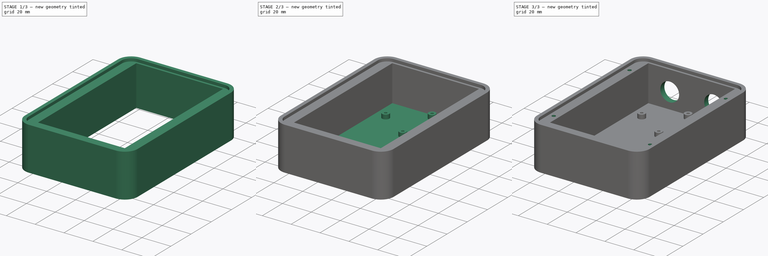
[diagram: build sequence overview — one tinted view per stage of 3, left to right]
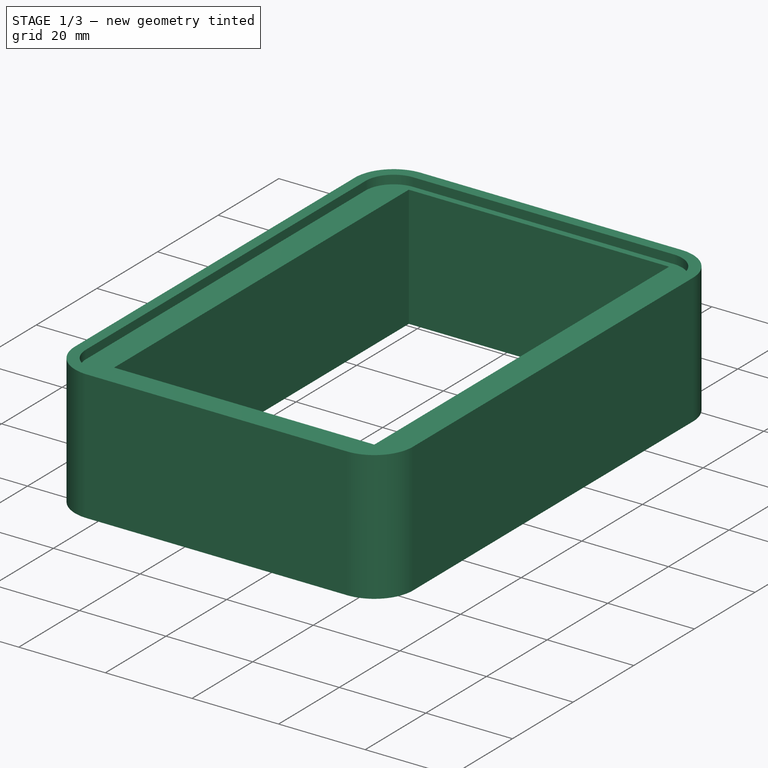
[diagram: stage 1 of 3 — iso view after this stage's code; geometry added in this stage tinted green]
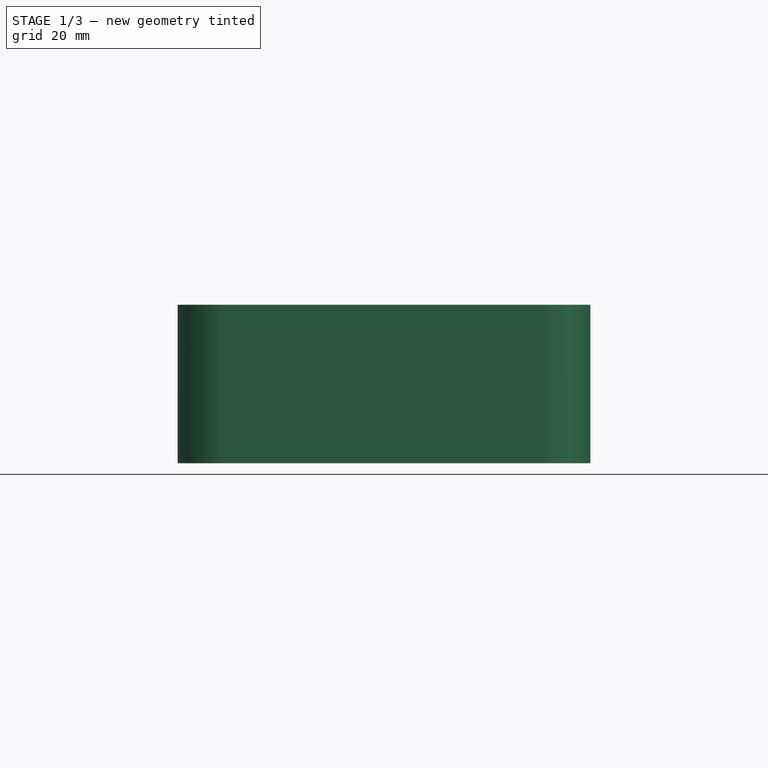
[diagram: stage 1 of 3 — front view after this stage's code; geometry added in this stage tinted green]
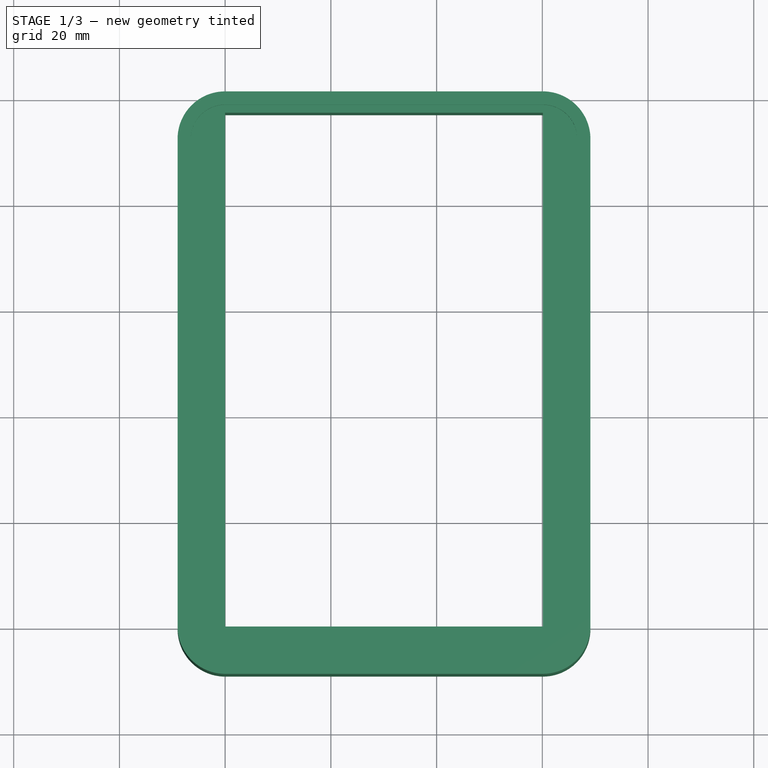
[diagram: stage 1 of 3 — top view after this stage's code; geometry added in this stage tinted green]
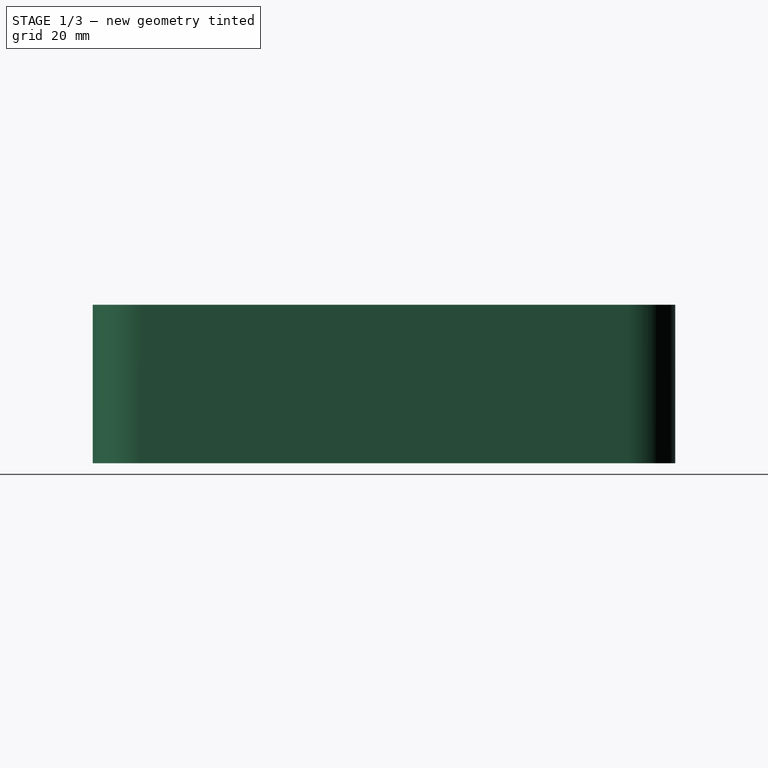
[diagram: stage 1 of 3 — right view after this stage's code; geometry added in this stage tinted green]
FCSTD DOCUMENT  (FreeCAD 0.18R4 (GitTag))
Label: uBike
License: All rights reserved
LicenseURL: http://en.wikipedia.org/wiki/All_rights_reserved
objects: Sketcher::SketchObject×6, PartDesign::Pad×3, PartDesign::Pocket×3, PartDesign::Body×1
note: 19 computed .brp shape members not serialized (recipe doc carries the construction recipe); baked Part::Feature solids carry a one-line shape summary decoded from their .brp

FEATURE [Sketcher::SketchObject] Sketch
  MapMode = 5
  Support = -> [XY_Plane]
  sketch-geometry (12):
    g0: LineSegment StartX=-1.7e-15 StartY=-9 StartZ=0 EndX=60.1 EndY=-9 EndZ=0
    g1: LineSegment StartX=69.1 StartY=3e-16 StartZ=0 EndX=69.1 EndY=92.2 EndZ=0
    g2: LineSegment StartX=60.1 StartY=101.2 StartZ=0 EndX=0 EndY=101.2 EndZ=0
    g3: LineSegment StartX=-9 StartY=92.2 StartZ=0 EndX=-9 EndY=0 EndZ=0
    g4: ArcOfCircle CenterX=6e-16 CenterY=92.2 CenterZ=0 NormalX=0 NormalY=0 NormalZ=1 AngleXU=0 Radius=9 StartAngle=1.5708 EndAngle=3.14159
    g5: ArcOfCircle CenterX=60.1 CenterY=92.2 CenterZ=0 NormalX=0 NormalY=0 NormalZ=1 AngleXU=0 Radius=9 StartAngle=7e-16 EndAngle=1.5708
    g6: ArcOfCircle CenterX=60.1 CenterY=3e-16 CenterZ=0 NormalX=0 NormalY=0 NormalZ=1 AngleXU=0 Radius=9 StartAngle=4.71239 EndAngle=6.28319
    g7: ArcOfCircle CenterX=0 CenterY=0 CenterZ=0 NormalX=0 NormalY=0 NormalZ=1 AngleXU=0 Radius=9 StartAngle=3.14159 EndAngle=4.71239
    g8: LineSegment StartX=0 StartY=0 StartZ=0 EndX=60.1 EndY=0 EndZ=0
    g9: LineSegment StartX=60.1 StartY=0 StartZ=0 EndX=60.1 EndY=97.2 EndZ=0
    g10: LineSegment StartX=60.1 StartY=97.2 StartZ=0 EndX=0 EndY=97.2 EndZ=0
    g11: LineSegment StartX=0 StartY=97.2 StartZ=0 EndX=0 EndY=0 EndZ=0
  constraints (30):
    c: Horizontal(g0)
    c: Horizontal(g2)
    c: Vertical(g1)
    c: Vertical(g3)
    c: Tangent(g3,g4) = -1.5708
    c: Tangent(g2,g4) = -1.5708
    c: Tangent(g2,g5) = -1.5708
    c: Tangent(g1,g5) = -1.5708
    c: Tangent(g1,g6) = -1.5708
    c: Tangent(g0,g6) = -1.5708
    c: Tangent(g0,g7) = -1.5708
    c: Tangent(g3,g7) = -1.5708
    c: DistanceX(g3,g1) = 78.1
    c: DistanceY(g0,g2) = 110.2
    c: Radius(g7) = 9
    c: Equal(g7,g6)
    c: Equal(g7,g4)
    c: Equal(g7,g5)
    c: Coincident(g7,g-1)
    c: Coincident(g8,g9)
    c: Coincident(g9,g10)
    c: Coincident(g10,g11)
    c: Coincident(g11,g8)
    c: Horizontal(g8)
    c: Horizontal(g10)
    c: Vertical(g9)
    c: Vertical(g11)
    c: Coincident(g7,g8)
    c: PointOnObject(g5,g9)
    c: DistanceY(g10,g2) = 4
FEATURE [PartDesign::Pad] Pad
  Length = 30
  Length2 = 100
  Profile = -> Sketch
  Type = 0
FEATURE [Sketcher::SketchObject] Sketch001
  ExternalGeometry = -> [Pad]
  MapMode = 5
  Placement = pos=(0,0,30) rot=(0,0,1;0rad)
  Support = -> [Pad]
  sketch-geometry (8):
    g0: LineSegment StartX=1e-16 StartY=98.7 StartZ=0 EndX=60.1 EndY=98.7 EndZ=0
    g1: LineSegment StartX=66.6 StartY=92.2 StartZ=0 EndX=66.6 EndY=0 EndZ=0
    g2: LineSegment StartX=60.1 StartY=-6.5 StartZ=0 EndX=0 EndY=-6.5 EndZ=0
    g3: LineSegment StartX=-6.5 StartY=8e-16 StartZ=0 EndX=-6.5 EndY=92.2 EndZ=0
    g4: ArcOfCircle CenterX=-3e-16 CenterY=92.2 CenterZ=0 NormalX=0 NormalY=0 NormalZ=1 AngleXU=0 Radius=6.5 StartAngle=1.5708 EndAngle=3.14159
    g5: ArcOfCircle CenterX=60.1 CenterY=92.2 CenterZ=0 NormalX=0 NormalY=0 NormalZ=1 AngleXU=0 Radius=6.5 StartAngle=0 EndAngle=1.5708
    g6: ArcOfCircle CenterX=60.1 CenterY=-3e-16 CenterZ=0 NormalX=0 NormalY=0 NormalZ=1 AngleXU=0 Radius=6.5 StartAngle=4.71239 EndAngle=6.28319
    g7: ArcOfCircle CenterX=0 CenterY=0 CenterZ=0 NormalX=0 NormalY=0 NormalZ=1 AngleXU=0 Radius=6.5 StartAngle=3.14159 EndAngle=4.71239
  constraints (19):
    c: Horizontal(g0)
    c: Horizontal(g2)
    c: Vertical(g1)
    c: Vertical(g3)
    c: Tangent(g3,g4) = 1.5708
    c: Tangent(g0,g4) = 1.5708
    c: Tangent(g0,g5) = 1.5708
    c: Tangent(g1,g5) = 1.5708
    c: Tangent(g1,g6) = 1.5708
    c: Tangent(g2,g6) = 1.5708
    c: Tangent(g2,g7) = 1.5708
    c: Tangent(g3,g7) = 1.5708
    c: Radius(g4) = 6.5
    c: Equal(g4,g5)
    c: Equal(g4,g7)
    c: Equal(g4,g6)
    c: Coincident(g7,g-1)
    c: DistanceY(g0,g-4) = 2.5
    c: Vertical(g-3,g0)
FEATURE [PartDesign::Pocket] Pocket
  BaseFeature = -> Pad
  Length = 2
  Length2 = 100
  Profile = -> Sketch001
  Type = 0
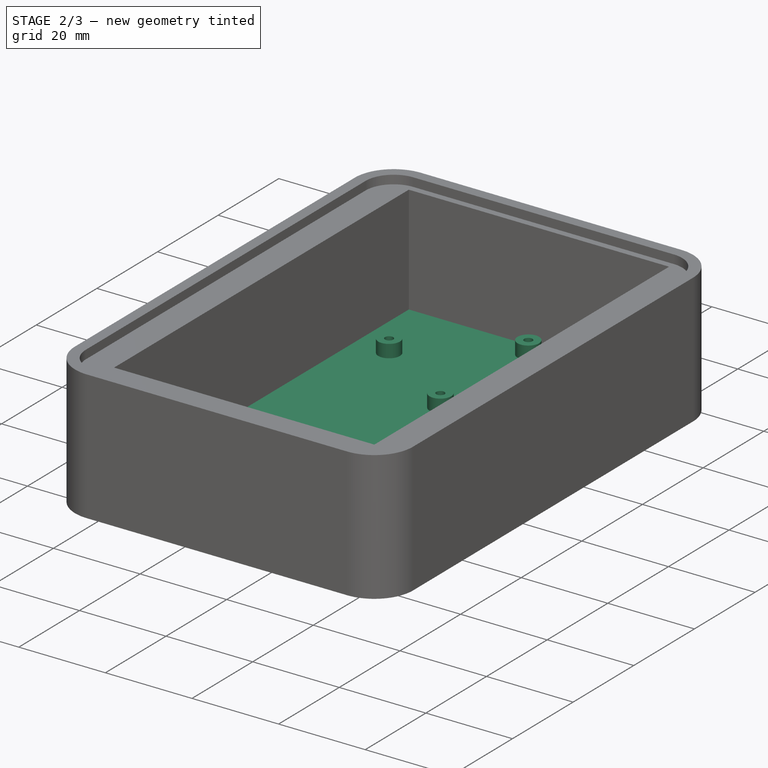
[diagram: stage 2 of 3 — iso view after this stage's code; geometry added in this stage tinted green]
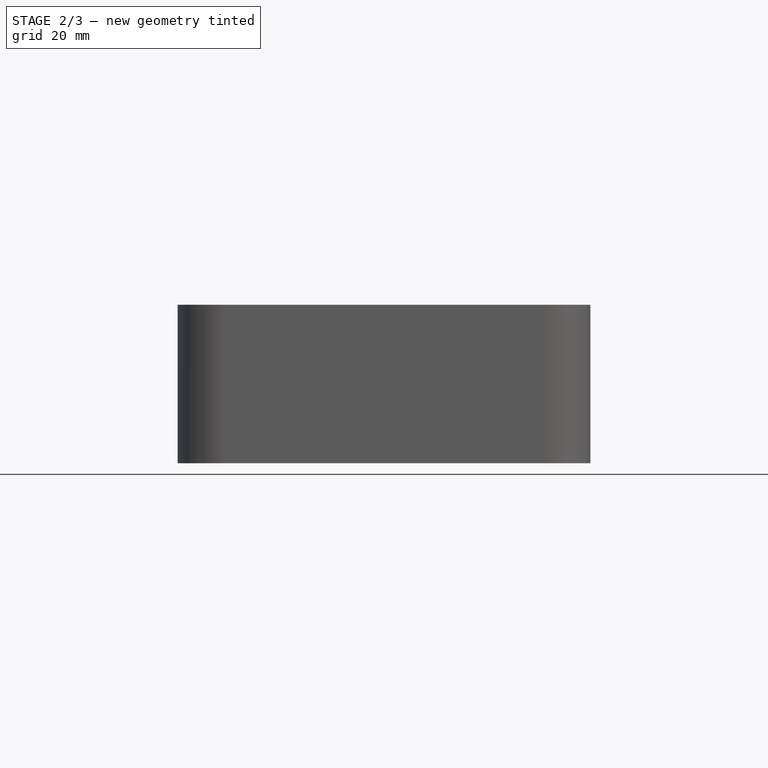
[diagram: stage 2 of 3 — front view after this stage's code; geometry added in this stage tinted green]
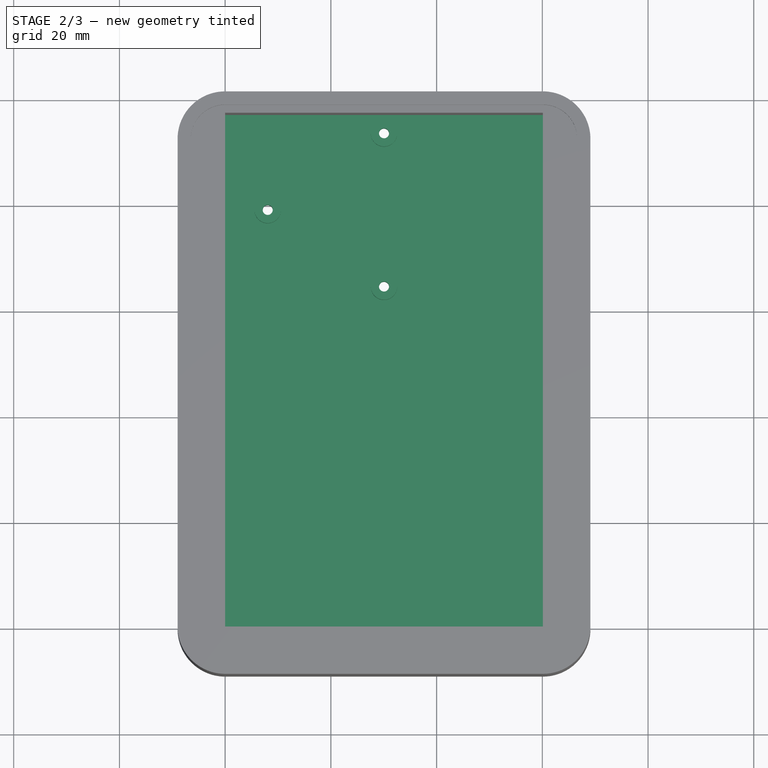
[diagram: stage 2 of 3 — top view after this stage's code; geometry added in this stage tinted green]
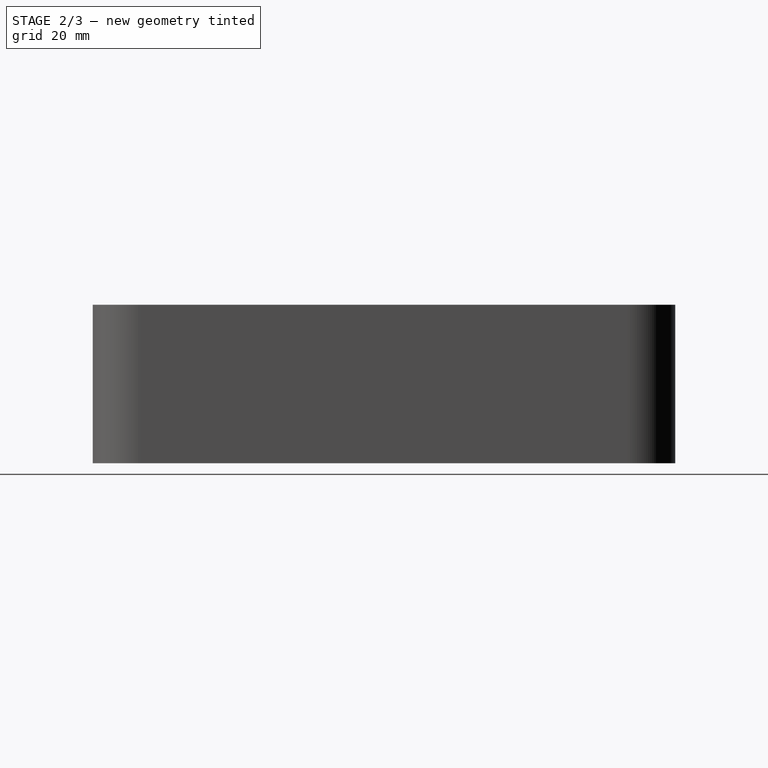
[diagram: stage 2 of 3 — right view after this stage's code; geometry added in this stage tinted green]
FEATURE [Sketcher::SketchObject] Sketch002
  ExternalGeometry = -> [Pocket]
  MapMode = 5
  Placement = pos=(0,0,0) rot=(1,0,0;3.14159rad)
  Support = -> [Pocket]
  sketch-geometry (7):
    g0: LineSegment StartX=0 StartY=0 StartZ=0 EndX=60.1 EndY=0 EndZ=0
    g1: LineSegment StartX=60.1 StartY=0 StartZ=0 EndX=60.1 EndY=-97.2 EndZ=0
    g2: LineSegment StartX=60.1 StartY=-97.2 StartZ=0 EndX=0 EndY=-97.2 EndZ=0
    g3: LineSegment StartX=0 StartY=-97.2 StartZ=0 EndX=0 EndY=0 EndZ=0
    g4: Circle CenterX=8.05 CenterY=-79.2 CenterZ=0 NormalX=0 NormalY=0 NormalZ=1 AngleXU=0 Radius=0.95
    g5: Circle CenterX=30.05 CenterY=-64.7 CenterZ=0 NormalX=0 NormalY=0 NormalZ=1 AngleXU=0 Radius=0.95
    g6: Circle CenterX=30.05 CenterY=-93.7 CenterZ=0 NormalX=0 NormalY=0 NormalZ=1 AngleXU=0 Radius=0.95
  constraints (19):
    c: Coincident(g0,g1)
    c: Coincident(g1,g2)
    c: Coincident(g2,g3)
    c: Coincident(g3,g0)
    c: Horizontal(g0)
    c: Horizontal(g2)
    c: Vertical(g1)
    c: Vertical(g3)
    c: Coincident(g0,g-1)
    c: Coincident(g1,g-3)
    c: Radius(g4) = 0.95
    c: Equal(g4,g5)
    c: Equal(g4,g6)
    c: Vertical(g5,g6)
    c: DistanceY(g6,g5) = 29
    c: DistanceX(g4,g5) = 22
    c: DistanceY(g4,g5) = 14.5
    c: DistanceX(g0,g5) = 30.05
    c: DistanceY(g2,g6) = 3.5
FEATURE [PartDesign::Pad] Pad001
  BaseFeature = -> Pocket
  Length = 3
  Length2 = 100
  Profile = -> Sketch002
  Reversed = true
  Type = 0
FEATURE [Sketcher::SketchObject] Sketch003
  ExternalGeometry = -> [Pad001]
  MapMode = 5
  Placement = pos=(0,0,3) rot=(0,0,1;0rad)
  Support = -> [Pad001]
  sketch-geometry (6):
    g0: Circle CenterX=8.05 CenterY=79.2 CenterZ=0 NormalX=0 NormalY=0 NormalZ=1 AngleXU=0 Radius=2.5
    g1: Circle CenterX=30.05 CenterY=93.7 CenterZ=0 NormalX=0 NormalY=0 NormalZ=1 AngleXU=0 Radius=2.5
    g2: Circle CenterX=30.05 CenterY=64.7 CenterZ=0 NormalX=0 NormalY=0 NormalZ=1 AngleXU=0 Radius=2.5
    g3: Circle CenterX=30.05 CenterY=64.7 CenterZ=0 NormalX=0 NormalY=0 NormalZ=1 AngleXU=0 Radius=0.95
    g4: Circle CenterX=8.05 CenterY=79.2 CenterZ=0 NormalX=0 NormalY=0 NormalZ=1 AngleXU=0 Radius=0.95
    g5: Circle CenterX=30.05 CenterY=93.7 CenterZ=0 NormalX=0 NormalY=0 NormalZ=1 AngleXU=0 Radius=0.95
  constraints (12):
    c: Radius(g1) = 2.5
    c: Equal(g1,g2)
    c: Equal(g1,g0)
    c: Coincident(g5,g-5)
    c: Coincident(g2,g-4)
    c: Coincident(g4,g-3)
    c: Coincident(g0,g4)
    c: Coincident(g1,g5)
    c: Equal(g4,g-3)
    c: Equal(g-5,g5)
    c: Equal(g3,g-4)
    c: Coincident(g3,g2)
FEATURE [PartDesign::Pad] Pad002
  BaseFeature = -> Pad001
  Length = 3
  Length2 = 100
  Profile = -> Sketch003
  Type = 0
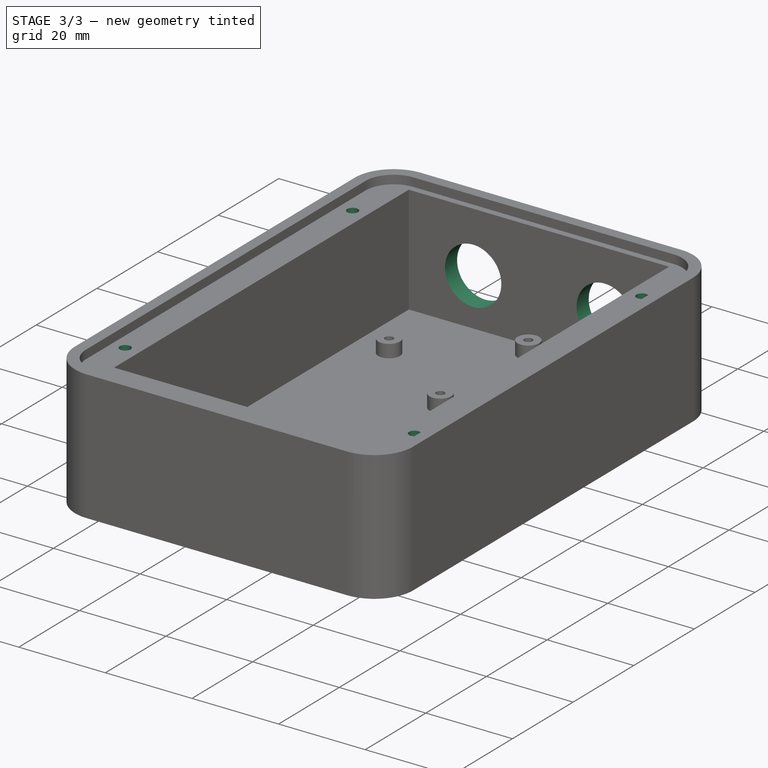
[diagram: stage 3 of 3 — iso view after this stage's code; geometry added in this stage tinted green]
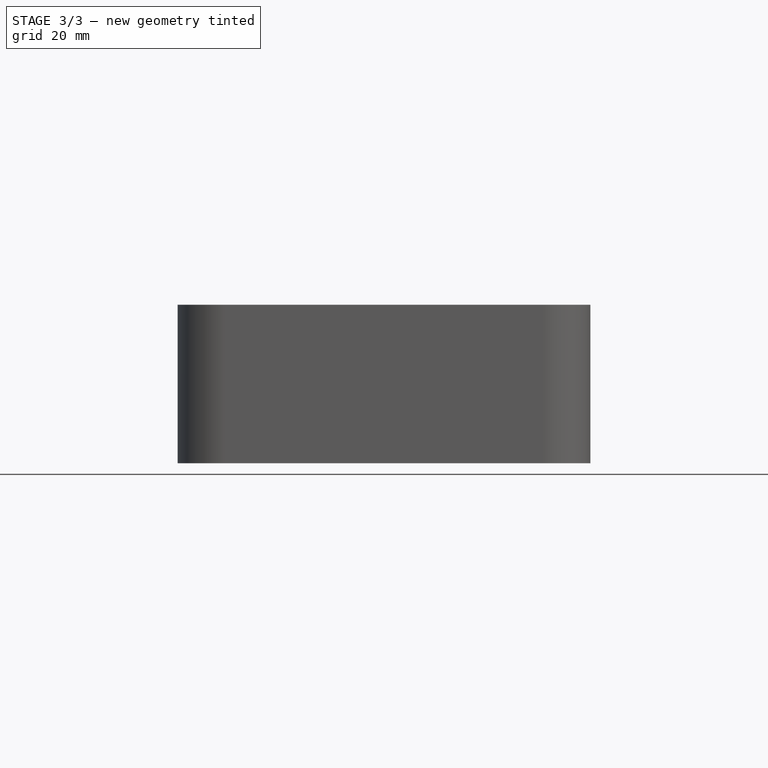
[diagram: stage 3 of 3 — front view after this stage's code; geometry added in this stage tinted green]
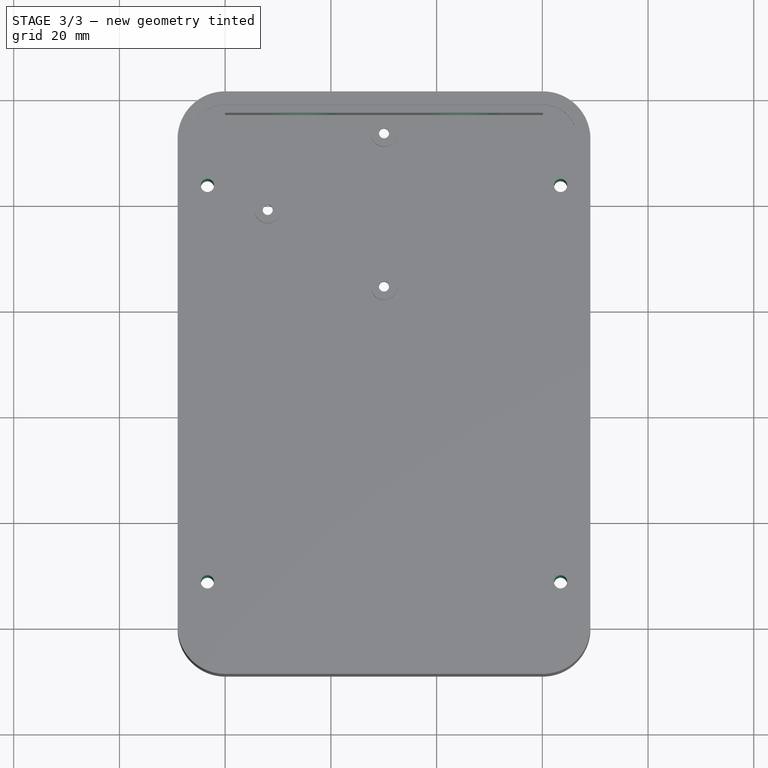
[diagram: stage 3 of 3 — top view after this stage's code; geometry added in this stage tinted green]
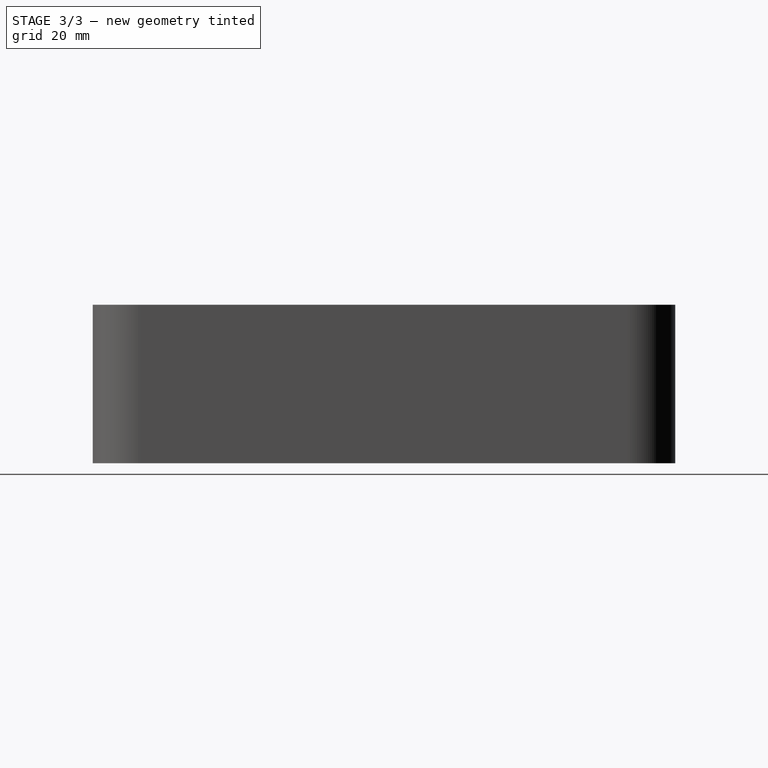
[diagram: stage 3 of 3 — right view after this stage's code; geometry added in this stage tinted green]
FEATURE [Sketcher::SketchObject] Sketch004
  ExternalGeometry = -> [Pad002]
  MapMode = 5
  Placement = pos=(0,97.2,0) rot=(1,0,0;1.5708rad)
  Support = -> [Pad002]
  sketch-geometry (2):
    g0: Circle CenterX=14.85 CenterY=14 CenterZ=0 NormalX=0 NormalY=0 NormalZ=1 AngleXU=0 Radius=6.5
    g1: Circle CenterX=45.25 CenterY=14 CenterZ=0 NormalX=0 NormalY=0 NormalZ=1 AngleXU=0 Radius=6.5
  constraints (6):
    c: DistanceY(g-3,g1) = 11
    c: DistanceY(g-3,g0) = 11
    c: DistanceX(g0,g1) = 30.4
    c: Radius(g0) = 6.5
    c: Equal(g0,g1)
    c: DistanceX(g1,g-3) = 14.85
FEATURE [PartDesign::Pocket] Pocket001
  BaseFeature = -> Pad002
  Length = 5
  Length2 = 100
  Profile = -> Sketch004
  Type = 1
FEATURE [Sketcher::SketchObject] Sketch005
  ExternalGeometry = -> [Pocket001]
  MapMode = 5
  Placement = pos=(0,0,28) rot=(0,0,1;0rad)
  Support = -> [Pocket001]
  sketch-geometry (8):
    g0: Circle CenterX=-3.35 CenterY=83.45 CenterZ=0 NormalX=0 NormalY=0 NormalZ=1 AngleXU=0 Radius=1.25
    g1: Circle CenterX=-3.35 CenterY=8.45 CenterZ=0 NormalX=0 NormalY=0 NormalZ=1 AngleXU=0 Radius=1.25
    g2: Circle CenterX=63.45 CenterY=83.45 CenterZ=0 NormalX=0 NormalY=0 NormalZ=1 AngleXU=0 Radius=1.25
    g3: Circle CenterX=63.45 CenterY=8.45 CenterZ=0 NormalX=0 NormalY=0 NormalZ=1 AngleXU=0 Radius=1.25
    g4: LineSegment [constr] StartX=-3.35 StartY=83.45 StartZ=0 EndX=63.45 EndY=83.45 EndZ=0
    g5: LineSegment [constr] StartX=63.45 StartY=83.45 StartZ=0 EndX=63.45 EndY=8.45 EndZ=0
    g6: LineSegment [constr] StartX=63.45 StartY=8.45 StartZ=0 EndX=-3.35 EndY=8.45 EndZ=0
    g7: LineSegment [constr] StartX=-3.35 StartY=8.45 StartZ=0 EndX=-3.35 EndY=83.45 EndZ=0
  constraints (21):
    c: Coincident(g4,g5)
    c: Coincident(g5,g6)
    c: Coincident(g6,g7)
    c: Coincident(g7,g4)
    c: Horizontal(g4)
    c: Horizontal(g6)
    c: Vertical(g5)
    c: Vertical(g7)
    c: Coincident(g0,g4)
    c: Coincident(g1,g6)
    c: Coincident(g2,g4)
    c: Coincident(g3,g5)
    c: Radius(g1) = 1.25
    c: Equal(g1,g0)
    c: Equal(g1,g2)
    c: Equal(g1,g3)
    c: DistanceX(g-3,g0) = 3.15
    c: DistanceX(g2,g-4) = 3.15
    c: DistanceY(g5,g5) = 75
    c: DistanceY(g-4,g-4) = 92.2
    c: DistanceY(g-4,g3) = 8.45
FEATURE [PartDesign::Pocket] Pocket002
  BaseFeature = -> Pocket001
  Length = 5
  Length2 = 100
  Profile = -> Sketch005
  Type = 1
FEATURE [PartDesign::Body] Body
  Group = -> [Sketch,Pad,Sketch001,Pocket,Sketch002,Pad001,Sketch003,Pad002,Sketch004,Pocket001,Sketch005,Pocket002]
  Origin = -> Origin
  Tip = -> Pocket002
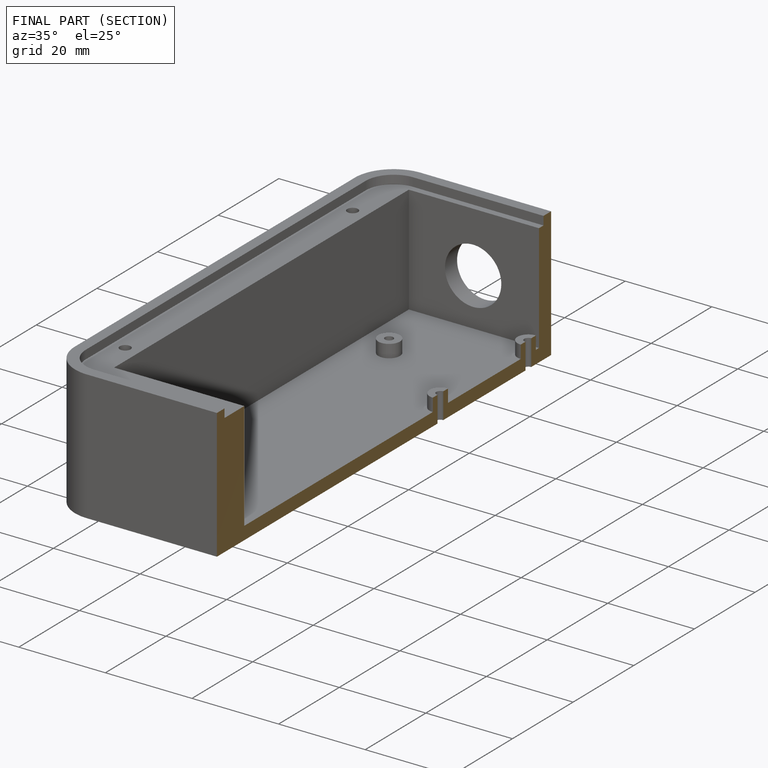
[diagram: finished part — half-section view (interior)]
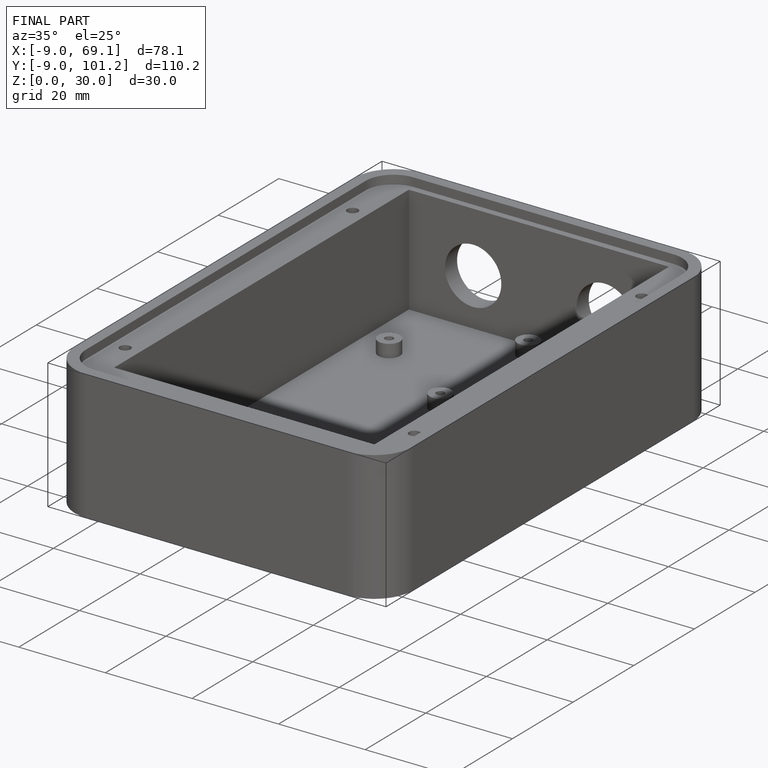
[diagram: finished part — iso view with bounding-box wireframe]
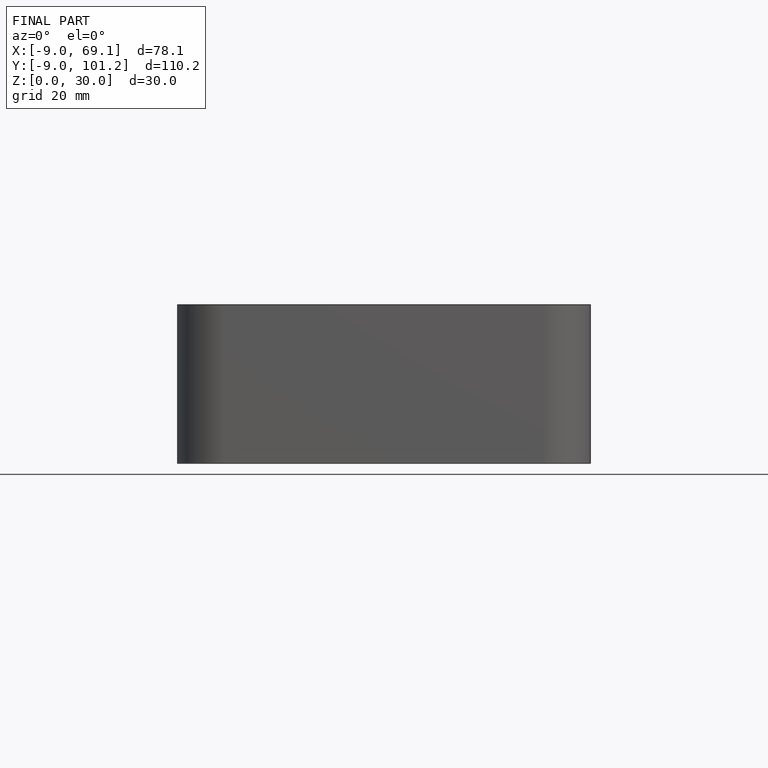
[diagram: finished part — front view with bounding-box wireframe]
